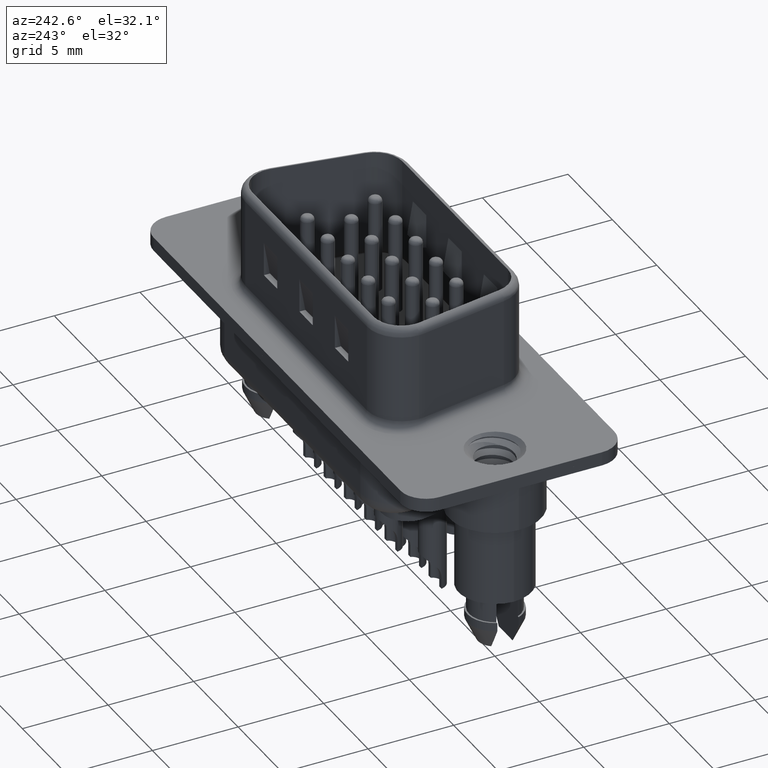
[diagram: clean part render]
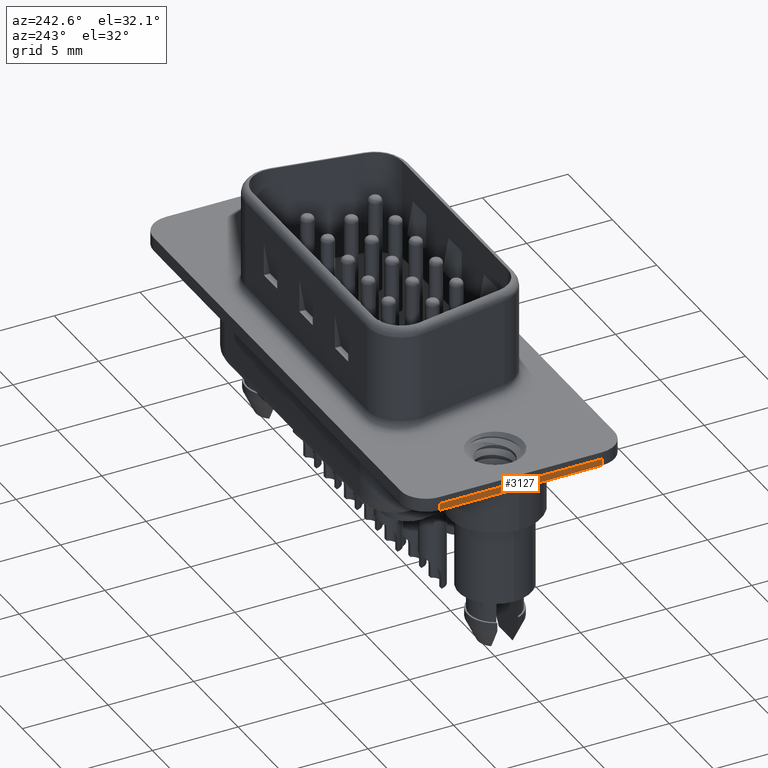
[diagram: same view with one face highlighted and labeled with its STEP entity id]
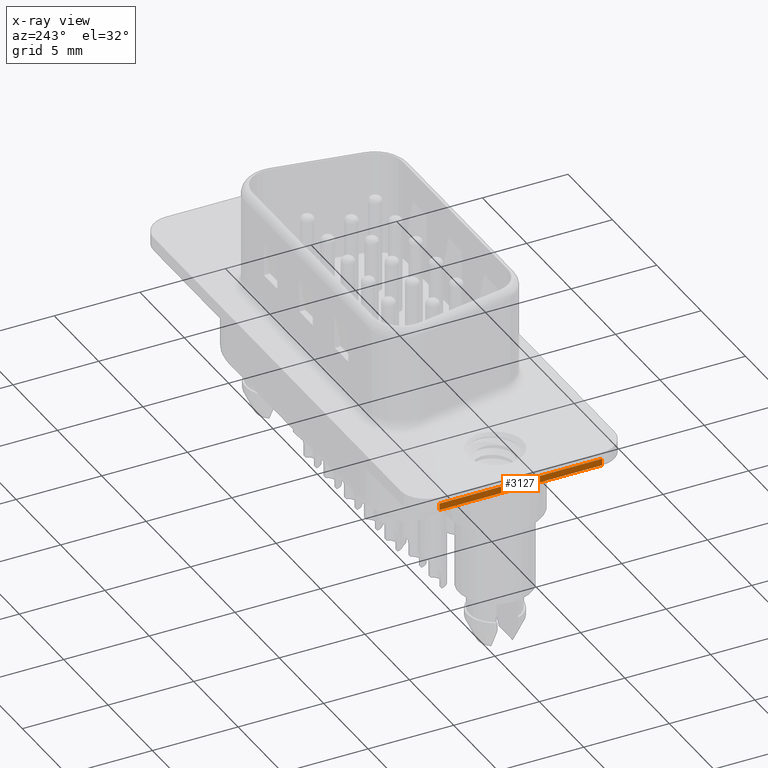
[diagram: x-ray of the same camera — body ghosted, the highlighted face saturated]
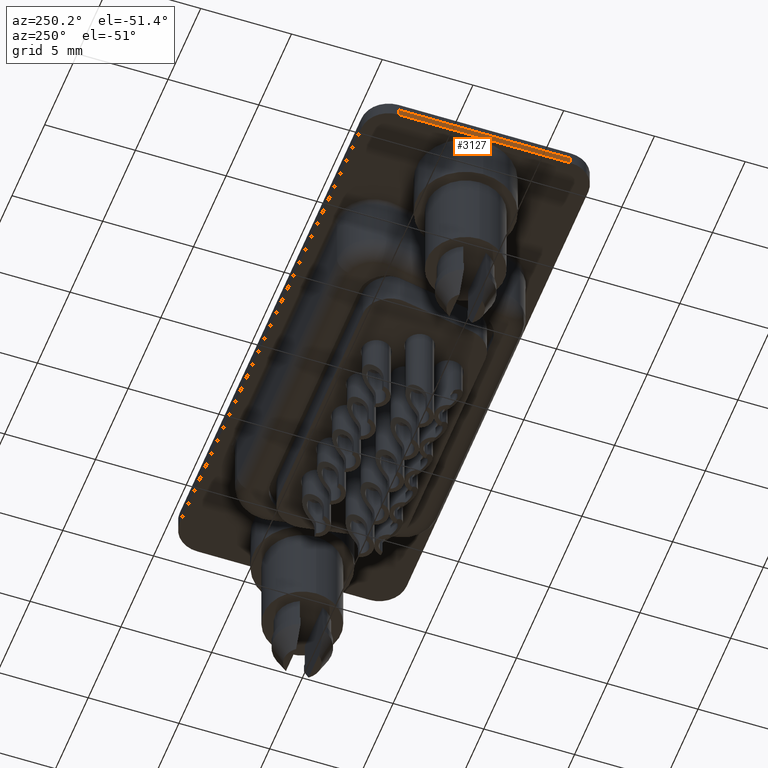
[diagram: same view with one face highlighted and labeled with its STEP entity id]
A machine part, auxiliary view. The second image highlights one B-rep face of the part: STEP entity #3127.
The next image is the same camera in x-ray: the body ghosted, the highlighted face saturated — about 0% of this face is hidden behind the body in this view.
A second angle (auxiliary view) of the same face is appended — the face is thin or edge-on in the first view.
In plain terms, the highlighted planar face has unit normal (-1, 0, 0).
Its self-contained STEP definition (entity closure, byte-faithful):
#253 = CARTESIAN_POINT ( 'NONE',  ( -2.900000000000001700, -4.750000000000000900, 0.0000000000000000000 ) ) ;
#1054 = CARTESIAN_POINT ( 'NONE',  ( -2.900000000000001200, 4.750000000000000000, -0.4000000000000000200 ) ) ;
#1114 = DIRECTION ( 'NONE',  ( 0.0000000000000000000, 0.0000000000000000000, 1.000000000000000000 ) ) ;
#1151 = AXIS2_PLACEMENT_3D ( 'NONE', #6016, #5894, #5526 ) ;
#1704 = EDGE_CURVE ( 'NONE', #14163, #16224, #8418, .T. ) ;
#2366 = VECTOR ( 'NONE', #13122, 1000.000000000000000 ) ;
#2570 = VECTOR ( 'NONE', #6198, 1000.000000000000000 ) ;
#3127 = ADVANCED_FACE ( 'NONE', ( #11010 ), #13523, .T. ) ;
#3159 = CARTESIAN_POINT ( 'NONE',  ( -2.900000000000001200, 4.750000000000000000, 0.0000000000000000000 ) ) ;
#3582 = ORIENTED_EDGE ( 'NONE', *, *, #1704, .T. ) ;
#4596 = ORIENTED_EDGE ( 'NONE', *, *, #17229, .F. ) ;
#5147 = VERTEX_POINT ( 'NONE', #3159 ) ;
#5218 = EDGE_CURVE ( 'NONE', #5147, #7445, #13274, .T. ) ;
#5526 = DIRECTION ( 'NONE',  ( 0.0000000000000000000, 0.0000000000000000000, 1.000000000000000000 ) ) ;
#5894 = DIRECTION ( 'NONE',  ( -1.000000000000000000, 0.0000000000000000000, 0.0000000000000000000 ) ) ;
#6016 = CARTESIAN_POINT ( 'NONE',  ( -2.900000000000001700, -4.750000000000000900, -0.4000000000000000200 ) ) ;
#6198 = DIRECTION ( 'NONE',  ( 0.0000000000000000000, 0.0000000000000000000, 1.000000000000000000 ) ) ;
#7092 = EDGE_LOOP ( 'NONE', ( #17670, #4596, #3582, #7214 ) ) ;
#7214 = ORIENTED_EDGE ( 'NONE', *, *, #7900, .T. ) ;
#7445 = VERTEX_POINT ( 'NONE', #253 ) ;
#7900 = EDGE_CURVE ( 'NONE', #16224, #7445, #13070, .T. ) ;
#8418 = LINE ( 'NONE', #12385, #15595 ) ;
#9291 = CARTESIAN_POINT ( 'NONE',  ( -2.900000000000001700, -4.750000000000000900, -0.4000000000000000200 ) ) ;
#11010 = FACE_OUTER_BOUND ( 'NONE', #7092, .T. ) ;
#11118 = CARTESIAN_POINT ( 'NONE',  ( -2.900000000000001700, -4.750000000000000900, 0.0000000000000000000 ) ) ;
#11215 = CARTESIAN_POINT ( 'NONE',  ( -2.900000000000001200, 4.750000000000000000, -0.4000000000000000200 ) ) ;
#12142 = DIRECTION ( 'NONE',  ( -0.0000000000000000000, -1.000000000000000000, -0.0000000000000000000 ) ) ;
#12385 = CARTESIAN_POINT ( 'NONE',  ( -2.900000000000001700, -4.750000000000000900, -0.4000000000000000200 ) ) ;
#13070 = LINE ( 'NONE', #14341, #2570 ) ;
#13122 = DIRECTION ( 'NONE',  ( -0.0000000000000000000, -1.000000000000000000, -0.0000000000000000000 ) ) ;
#13212 = VECTOR ( 'NONE', #1114, 1000.000000000000000 ) ;
#13274 = LINE ( 'NONE', #11118, #2366 ) ;
#13523 = PLANE ( 'NONE',  #1151 ) ;
#14163 = VERTEX_POINT ( 'NONE', #11215 ) ;
#14341 = CARTESIAN_POINT ( 'NONE',  ( -2.900000000000001700, -4.750000000000000900, -0.4000000000000000200 ) ) ;
#15595 = VECTOR ( 'NONE', #12142, 1000.000000000000000 ) ;
#16224 = VERTEX_POINT ( 'NONE', #9291 ) ;
#16827 = LINE ( 'NONE', #1054, #13212 ) ;
#17229 = EDGE_CURVE ( 'NONE', #14163, #5147, #16827, .T. ) ;
#17670 = ORIENTED_EDGE ( 'NONE', *, *, #5218, .F. ) ;